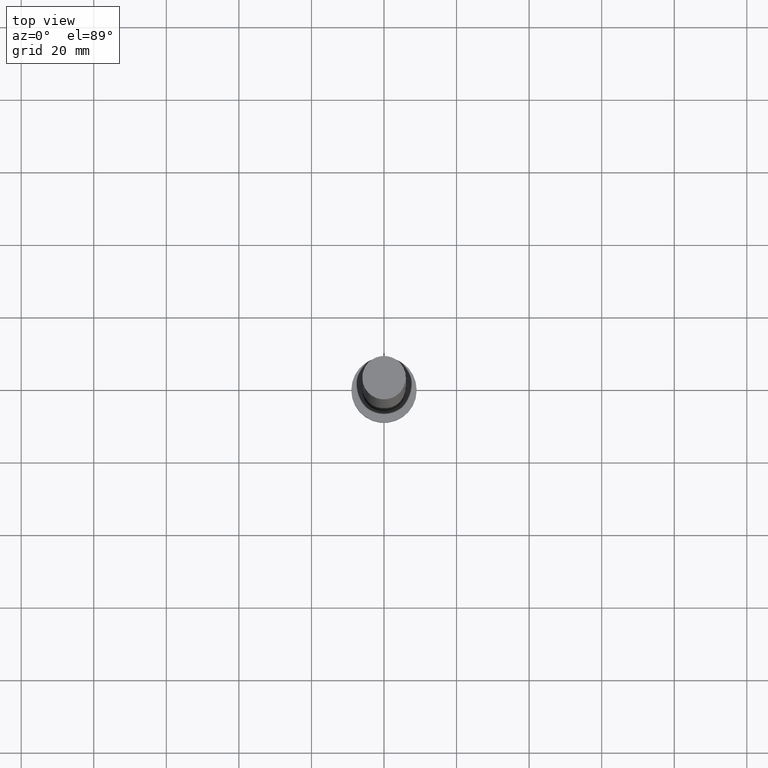
[diagram: clean part render]
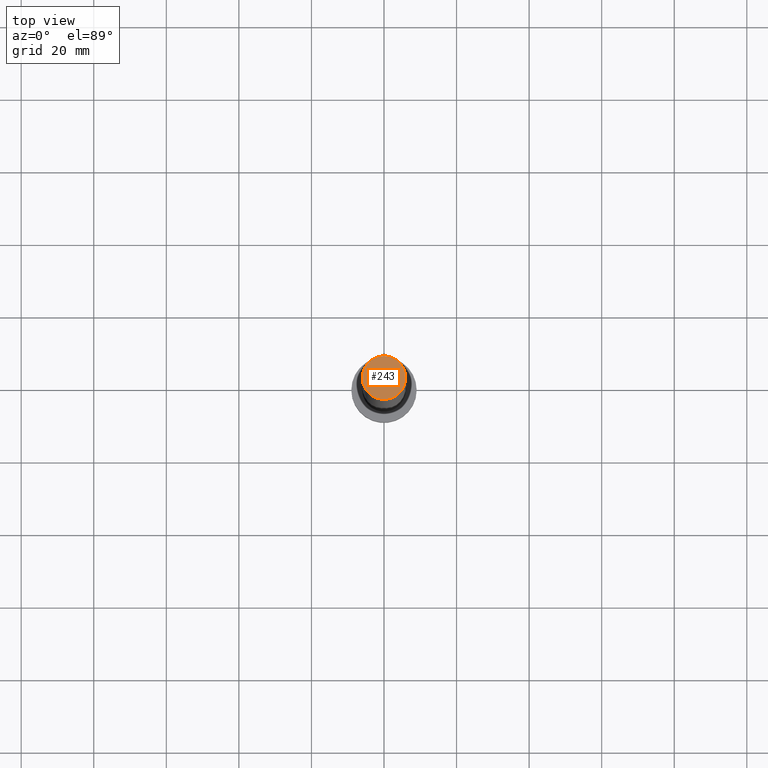
[diagram: same view with one face highlighted and labeled with its STEP entity id]
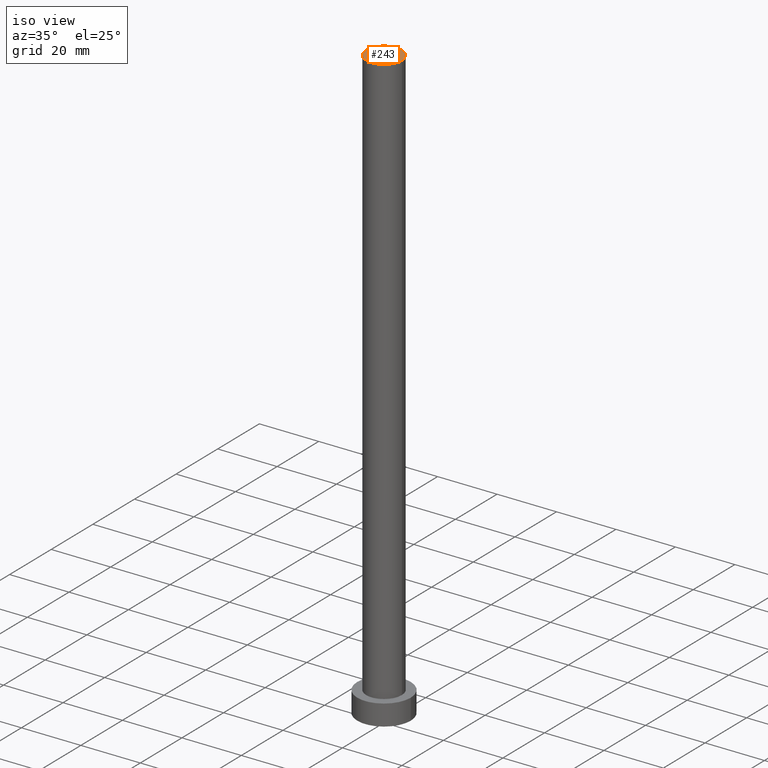
[diagram: same view with one face highlighted and labeled with its STEP entity id]
A machine part, top view. The second image highlights one B-rep face of the part: STEP entity #243.
A second angle (iso view) of the same face is appended — the face is thin or edge-on in the first view.
In plain terms, the highlighted planar face has unit normal (0, 0, 1).
Its self-contained STEP definition (entity closure, byte-faithful):
#20 = DIRECTION ( 'NONE',  ( 1.000000000000000000, 0.000000000000000000, -0.000000000000000000 ) ) ;
#54 = DIRECTION ( 'NONE',  ( 0.000000000000000000, 0.000000000000000000, 1.000000000000000000 ) ) ;
#59 = DIRECTION ( 'NONE',  ( 0.000000000000000000, 0.000000000000000000, 1.000000000000000000 ) ) ;
#66 = ORIENTED_EDGE ( 'NONE', *, *, #98, .T. ) ;
#80 = DIRECTION ( 'NONE',  ( 1.000000000000000000, 0.000000000000000000, 0.000000000000000000 ) ) ;
#82 = CIRCLE ( 'NONE', #185, 6.000000000000000888 ) ;
#93 = CARTESIAN_POINT ( 'NONE',  ( -6.000000000000000888, 0.000000000000000000, 200.0000000000000000 ) ) ;
#95 = ORIENTED_EDGE ( 'NONE', *, *, #164, .T. ) ;
#98 = EDGE_CURVE ( 'NONE', #133, #135, #235, .T. ) ;
#113 = AXIS2_PLACEMENT_3D ( 'NONE', #145, #229, #80 ) ;
#114 = AXIS2_PLACEMENT_3D ( 'NONE', #223, #54, #20 ) ;
#133 = VERTEX_POINT ( 'NONE', #251 ) ;
#135 = VERTEX_POINT ( 'NONE', #93 ) ;
#137 = PLANE ( 'NONE',  #114 ) ;
#145 = CARTESIAN_POINT ( 'NONE',  ( 0.000000000000000000, 0.000000000000000000, 200.0000000000000000 ) ) ;
#164 = EDGE_CURVE ( 'NONE', #135, #133, #82, .T. ) ;
#166 = EDGE_LOOP ( 'NONE', ( #95, #66 ) ) ;
#182 = FACE_OUTER_BOUND ( 'NONE', #166, .T. ) ;
#185 = AXIS2_PLACEMENT_3D ( 'NONE', #227, #59, #215 ) ;
#215 = DIRECTION ( 'NONE',  ( 1.000000000000000000, 0.000000000000000000, 0.000000000000000000 ) ) ;
#223 = CARTESIAN_POINT ( 'NONE',  ( 0.000000000000000000, 0.000000000000000000, 200.0000000000000000 ) ) ;
#227 = CARTESIAN_POINT ( 'NONE',  ( 0.000000000000000000, 0.000000000000000000, 200.0000000000000000 ) ) ;
#229 = DIRECTION ( 'NONE',  ( 0.000000000000000000, 0.000000000000000000, 1.000000000000000000 ) ) ;
#235 = CIRCLE ( 'NONE', #113, 6.000000000000000888 ) ;
#243 = ADVANCED_FACE ( 'NONE', ( #182 ), #137, .T. ) ;
#251 = CARTESIAN_POINT ( 'NONE',  ( 6.000000000000000888, 7.347880794884120722E-16, 200.0000000000000000 ) ) ;